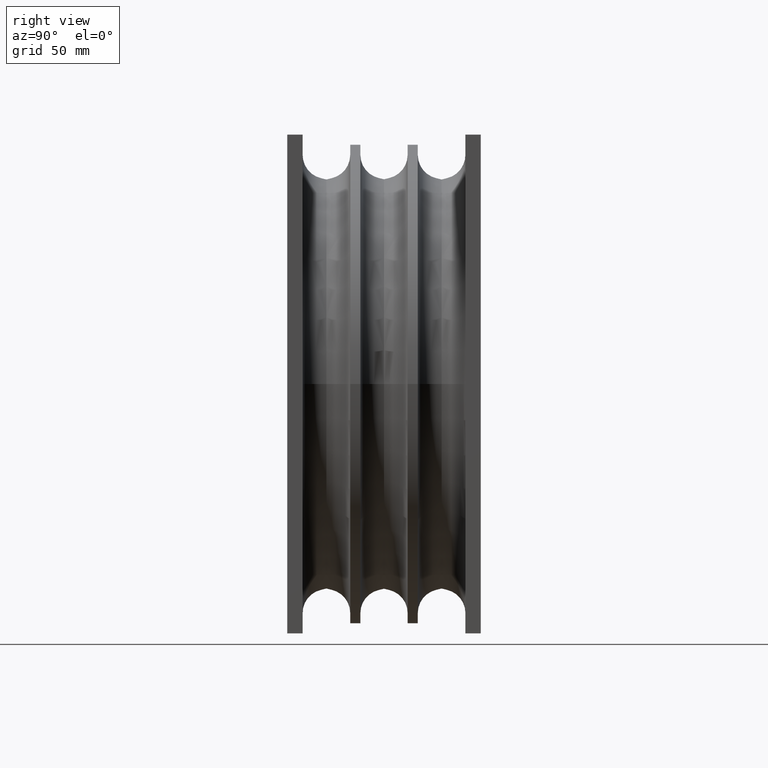
[diagram: clean part render]
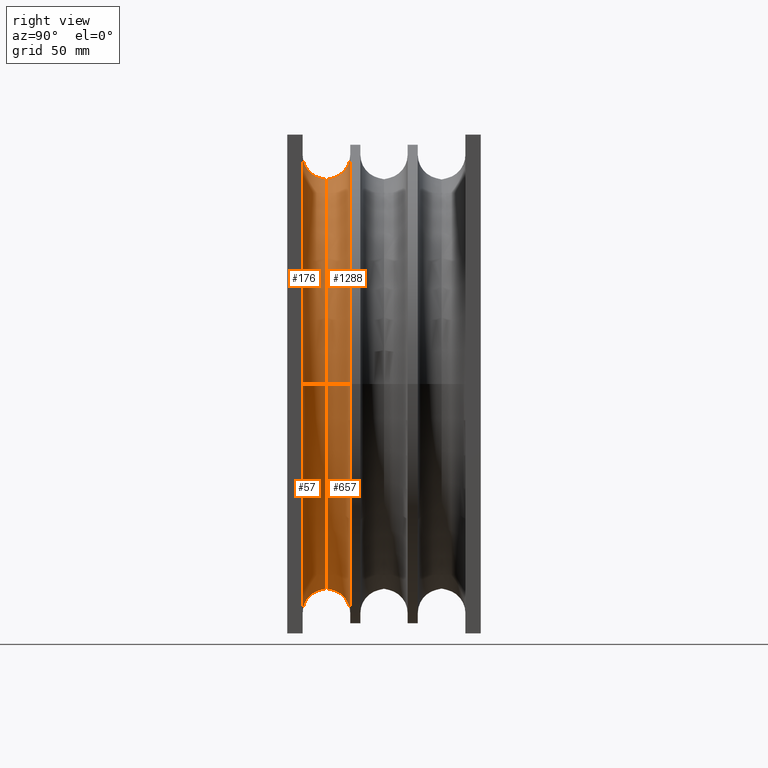
[diagram: same view with one multi-face feature highlighted, each face labeled with its STEP entity id]
A machine part, right view. The highlighted faces form ONE feature: a constant-radius fillet chain: 4 tangent blend faces with common blend radius 14.859 mm. The faces share edges in the B-rep.
Their STEP definitions:
[1] entity #176 (Torus):
#153 = DIRECTION ( 'NONE',  ( 1.000000000000000000, -2.306893861316488400E-016, 0.0000000000000000000 ) ) ;
#173 = VERTEX_POINT ( 'NONE', #452 ) ;
#176 = ADVANCED_FACE ( 'NONE', ( #908 ), #1188, .F. ) ;
#267 = CIRCLE ( 'NONE', #580, 5.625000000000000900 ) ;
#278 = EDGE_CURVE ( 'NONE', #490, #397, #854, .T. ) ;
#329 = DIRECTION ( 'NONE',  ( 1.000000000000000000, -2.258269631761038600E-016, 0.0000000000000000000 ) ) ;
#387 = CARTESIAN_POINT ( 'NONE',  ( -7.058335563419042900E-016, 0.3750000000000018900, 0.0000000000000000000 ) ) ;
#397 = VERTEX_POINT ( 'NONE', #1283 ) ;
#398 = ORIENTED_EDGE ( 'NONE', *, *, #964, .T. ) ;
#431 = AXIS2_PLACEMENT_3D ( 'NONE', #577, #934, #329 ) ;
#452 = CARTESIAN_POINT ( 'NONE',  ( -5.625000000000000900, 0.3750000000000031100, 6.888638245203862900E-016 ) ) ;
#464 = AXIS2_PLACEMENT_3D ( 'NONE', #1467, #1574, #488 ) ;
#474 = EDGE_CURVE ( 'NONE', #490, #173, #267, .T. ) ;
#488 = DIRECTION ( 'NONE',  ( 1.000000000000000000, 0.0000000000000000000, -1.224646799147354200E-016 ) ) ;
#490 = VERTEX_POINT ( 'NONE', #997 ) ;
#577 = CARTESIAN_POINT ( 'NONE',  ( 0.0000000000000000000, 0.9600000000000026300, 0.0000000000000000000 ) ) ;
#580 = AXIS2_PLACEMENT_3D ( 'NONE', #387, #1236, #153 ) ;
#654 = DIRECTION ( 'NONE',  ( 1.000000000000000000, -2.168133328304970800E-016, 0.0000000000000000000 ) ) ;
#656 = CARTESIAN_POINT ( 'NONE',  ( -5.040000000000000000, 0.9600000000000027400, 6.172219867702660300E-016 ) ) ;
#727 = CIRCLE ( 'NONE', #1476, 5.040000000000000000 ) ;
#806 = ORIENTED_EDGE ( 'NONE', *, *, #474, .F. ) ;
#854 = CIRCLE ( 'NONE', #927, 0.5850000000000004100 ) ;
#908 = FACE_OUTER_BOUND ( 'NONE', #1038, .T. ) ;
#927 = AXIS2_PLACEMENT_3D ( 'NONE', #1199, #1083, #1078 ) ;
#934 = DIRECTION ( 'NONE',  ( -2.258269631761038600E-016, -1.000000000000000000, -0.0000000000000000000 ) ) ;
#964 = EDGE_CURVE ( 'NONE', #397, #1011, #727, .T. ) ;
#997 = CARTESIAN_POINT ( 'NONE',  ( 5.625000000000000000, 0.3750000000000006700, 0.0000000000000000000 ) ) ;
#1011 = VERTEX_POINT ( 'NONE', #656 ) ;
#1038 = EDGE_LOOP ( 'NONE', ( #1303, #398, #1471, #806 ) ) ;
#1074 = EDGE_CURVE ( 'NONE', #173, #1011, #1285, .T. ) ;
#1078 = DIRECTION ( 'NONE',  ( -1.000000000000000000, 0.0000000000000000000, 0.0000000000000000000 ) ) ;
#1083 = DIRECTION ( 'NONE',  ( 0.0000000000000000000, 0.0000000000000000000, -1.000000000000000000 ) ) ;
#1188 = TOROIDAL_SURFACE ( 'NONE', #431, 5.625000000000000000, 0.5850000000000007400 ) ;
#1199 = CARTESIAN_POINT ( 'NONE',  ( 5.625000000000000000, 0.9600000000000014100, 0.0000000000000000000 ) ) ;
#1236 = DIRECTION ( 'NONE',  ( -2.258269631761038600E-016, -1.000000000000000000, -0.0000000000000000000 ) ) ;
#1246 = CARTESIAN_POINT ( 'NONE',  ( 1.617865865546481300E-032, 0.9600000000000027400, 0.0000000000000000000 ) ) ;
#1283 = CARTESIAN_POINT ( 'NONE',  ( 5.040000000000000000, 0.9600000000000027400, 0.0000000000000000000 ) ) ;
#1285 = CIRCLE ( 'NONE', #464, 0.5850000000000004100 ) ;
#1303 = ORIENTED_EDGE ( 'NONE', *, *, #278, .T. ) ;
#1376 = DIRECTION ( 'NONE',  ( -2.258269631761038600E-016, -1.000000000000000000, -0.0000000000000000000 ) ) ;
#1467 = CARTESIAN_POINT ( 'NONE',  ( -5.625000000000000000, 0.9600000000000038500, 6.888638245203861900E-016 ) ) ;
#1471 = ORIENTED_EDGE ( 'NONE', *, *, #1074, .F. ) ;
#1476 = AXIS2_PLACEMENT_3D ( 'NONE', #1246, #1376, #654 ) ;
#1574 = DIRECTION ( 'NONE',  ( 1.224646799147353200E-016, -2.765582676147827700E-032, 1.000000000000000000 ) ) ;
[2] entity #1288 (Torus):
#78 = AXIS2_PLACEMENT_3D ( 'NONE', #699, #213, #1052 ) ;
#84 = CARTESIAN_POINT ( 'NONE',  ( 5.625000000000000000, 0.9600000000000014100, 0.0000000000000000000 ) ) ;
#128 = DIRECTION ( 'NONE',  ( -2.258269631761038600E-016, -1.000000000000000000, -0.0000000000000000000 ) ) ;
#149 = VERTEX_POINT ( 'NONE', #1551 ) ;
#185 = EDGE_CURVE ( 'NONE', #397, #1553, #475, .T. ) ;
#213 = DIRECTION ( 'NONE',  ( 1.224646799147353200E-016, -2.765582676147827700E-032, 1.000000000000000000 ) ) ;
#229 = EDGE_CURVE ( 'NONE', #1553, #149, #418, .T. ) ;
#257 = TOROIDAL_SURFACE ( 'NONE', #272, 5.625000000000000000, 0.5850000000000007400 ) ;
#272 = AXIS2_PLACEMENT_3D ( 'NONE', #465, #128, #980 ) ;
#274 = FACE_OUTER_BOUND ( 'NONE', #1575, .T. ) ;
#310 = ORIENTED_EDGE ( 'NONE', *, *, #185, .T. ) ;
#397 = VERTEX_POINT ( 'NONE', #1283 ) ;
#418 = CIRCLE ( 'NONE', #1332, 5.625000000000000000 ) ;
#462 = DIRECTION ( 'NONE',  ( 1.000000000000000000, -2.428309327701567300E-016, 0.0000000000000000000 ) ) ;
#465 = CARTESIAN_POINT ( 'NONE',  ( 0.0000000000000000000, 0.9600000000000026300, 0.0000000000000000000 ) ) ;
#475 = CIRCLE ( 'NONE', #948, 0.5850000000000004100 ) ;
#581 = DIRECTION ( 'NONE',  ( 0.0000000000000000000, 0.0000000000000000000, -1.000000000000000000 ) ) ;
#608 = ORIENTED_EDGE ( 'NONE', *, *, #964, .F. ) ;
#654 = DIRECTION ( 'NONE',  ( 1.000000000000000000, -2.168133328304970800E-016, 0.0000000000000000000 ) ) ;
#656 = CARTESIAN_POINT ( 'NONE',  ( -5.040000000000000000, 0.9600000000000027400, 6.172219867702660300E-016 ) ) ;
#699 = CARTESIAN_POINT ( 'NONE',  ( -5.625000000000000000, 0.9600000000000038500, 6.888638245203861900E-016 ) ) ;
#727 = CIRCLE ( 'NONE', #1476, 5.040000000000000000 ) ;
#842 = CARTESIAN_POINT ( 'NONE',  ( 5.625000000000000000, 1.545000000000002100, 0.0000000000000000000 ) ) ;
#861 = CARTESIAN_POINT ( 'NONE',  ( -4.416160094258623900E-016, 1.545000000000003700, 0.0000000000000000000 ) ) ;
#916 = ORIENTED_EDGE ( 'NONE', *, *, #229, .T. ) ;
#948 = AXIS2_PLACEMENT_3D ( 'NONE', #84, #581, #1435 ) ;
#964 = EDGE_CURVE ( 'NONE', #397, #1011, #727, .T. ) ;
#980 = DIRECTION ( 'NONE',  ( 1.000000000000000000, -2.258269631761038600E-016, 0.0000000000000000000 ) ) ;
#991 = CIRCLE ( 'NONE', #78, 0.5850000000000004100 ) ;
#1011 = VERTEX_POINT ( 'NONE', #656 ) ;
#1052 = DIRECTION ( 'NONE',  ( 1.000000000000000000, 0.0000000000000000000, -1.224646799147354200E-016 ) ) ;
#1094 = DIRECTION ( 'NONE',  ( -2.258269631761038600E-016, -1.000000000000000000, -0.0000000000000000000 ) ) ;
#1246 = CARTESIAN_POINT ( 'NONE',  ( 1.617865865546481300E-032, 0.9600000000000027400, 0.0000000000000000000 ) ) ;
#1283 = CARTESIAN_POINT ( 'NONE',  ( 5.040000000000000000, 0.9600000000000027400, 0.0000000000000000000 ) ) ;
#1288 = ADVANCED_FACE ( 'NONE', ( #274 ), #257, .F. ) ;
#1296 = ORIENTED_EDGE ( 'NONE', *, *, #1444, .F. ) ;
#1332 = AXIS2_PLACEMENT_3D ( 'NONE', #861, #1094, #462 ) ;
#1376 = DIRECTION ( 'NONE',  ( -2.258269631761038600E-016, -1.000000000000000000, -0.0000000000000000000 ) ) ;
#1435 = DIRECTION ( 'NONE',  ( -1.000000000000000000, 0.0000000000000000000, 0.0000000000000000000 ) ) ;
#1444 = EDGE_CURVE ( 'NONE', #1011, #149, #991, .T. ) ;
#1476 = AXIS2_PLACEMENT_3D ( 'NONE', #1246, #1376, #654 ) ;
#1551 = CARTESIAN_POINT ( 'NONE',  ( -5.625000000000000000, 1.545000000000004600, 6.888638245203862900E-016 ) ) ;
#1553 = VERTEX_POINT ( 'NONE', #842 ) ;
#1575 = EDGE_LOOP ( 'NONE', ( #608, #310, #916, #1296 ) ) ;
[3] entity #657 (Torus):
#23 = EDGE_CURVE ( 'NONE', #149, #1553, #504, .T. ) ;
#40 = FACE_OUTER_BOUND ( 'NONE', #1422, .T. ) ;
#48 = CARTESIAN_POINT ( 'NONE',  ( 0.0000000000000000000, 0.9600000000000026300, 0.0000000000000000000 ) ) ;
#78 = AXIS2_PLACEMENT_3D ( 'NONE', #699, #213, #1052 ) ;
#84 = CARTESIAN_POINT ( 'NONE',  ( 5.625000000000000000, 0.9600000000000014100, 0.0000000000000000000 ) ) ;
#137 = AXIS2_PLACEMENT_3D ( 'NONE', #48, #1518, #1170 ) ;
#149 = VERTEX_POINT ( 'NONE', #1551 ) ;
#185 = EDGE_CURVE ( 'NONE', #397, #1553, #475, .T. ) ;
#213 = DIRECTION ( 'NONE',  ( 1.224646799147353200E-016, -2.765582676147827700E-032, 1.000000000000000000 ) ) ;
#237 = DIRECTION ( 'NONE',  ( 1.000000000000000000, -2.168133328304970800E-016, 0.0000000000000000000 ) ) ;
#397 = VERTEX_POINT ( 'NONE', #1283 ) ;
#475 = CIRCLE ( 'NONE', #948, 0.5850000000000004100 ) ;
#485 = AXIS2_PLACEMENT_3D ( 'NONE', #728, #866, #237 ) ;
#504 = CIRCLE ( 'NONE', #909, 5.625000000000000000 ) ;
#581 = DIRECTION ( 'NONE',  ( 0.0000000000000000000, 0.0000000000000000000, -1.000000000000000000 ) ) ;
#641 = ORIENTED_EDGE ( 'NONE', *, *, #1012, .F. ) ;
#656 = CARTESIAN_POINT ( 'NONE',  ( -5.040000000000000000, 0.9600000000000027400, 6.172219867702660300E-016 ) ) ;
#657 = ADVANCED_FACE ( 'NONE', ( #40 ), #1504, .F. ) ;
#686 = CIRCLE ( 'NONE', #485, 5.040000000000000000 ) ;
#699 = CARTESIAN_POINT ( 'NONE',  ( -5.625000000000000000, 0.9600000000000038500, 6.888638245203861900E-016 ) ) ;
#728 = CARTESIAN_POINT ( 'NONE',  ( 1.617865865546481300E-032, 0.9600000000000027400, 0.0000000000000000000 ) ) ;
#823 = DIRECTION ( 'NONE',  ( 1.000000000000000000, -2.428309327701567300E-016, 0.0000000000000000000 ) ) ;
#842 = CARTESIAN_POINT ( 'NONE',  ( 5.625000000000000000, 1.545000000000002100, 0.0000000000000000000 ) ) ;
#866 = DIRECTION ( 'NONE',  ( -2.258269631761038600E-016, -1.000000000000000000, -0.0000000000000000000 ) ) ;
#909 = AXIS2_PLACEMENT_3D ( 'NONE', #1537, #1021, #823 ) ;
#948 = AXIS2_PLACEMENT_3D ( 'NONE', #84, #581, #1435 ) ;
#991 = CIRCLE ( 'NONE', #78, 0.5850000000000004100 ) ;
#1011 = VERTEX_POINT ( 'NONE', #656 ) ;
#1012 = EDGE_CURVE ( 'NONE', #1011, #397, #686, .T. ) ;
#1021 = DIRECTION ( 'NONE',  ( -2.258269631761038600E-016, -1.000000000000000000, -0.0000000000000000000 ) ) ;
#1052 = DIRECTION ( 'NONE',  ( 1.000000000000000000, 0.0000000000000000000, -1.224646799147354200E-016 ) ) ;
#1170 = DIRECTION ( 'NONE',  ( 1.000000000000000000, -2.258269631761038600E-016, 0.0000000000000000000 ) ) ;
#1206 = ORIENTED_EDGE ( 'NONE', *, *, #23, .T. ) ;
#1283 = CARTESIAN_POINT ( 'NONE',  ( 5.040000000000000000, 0.9600000000000027400, 0.0000000000000000000 ) ) ;
#1422 = EDGE_LOOP ( 'NONE', ( #641, #1440, #1206, #1429 ) ) ;
#1429 = ORIENTED_EDGE ( 'NONE', *, *, #185, .F. ) ;
#1435 = DIRECTION ( 'NONE',  ( -1.000000000000000000, 0.0000000000000000000, 0.0000000000000000000 ) ) ;
#1440 = ORIENTED_EDGE ( 'NONE', *, *, #1444, .T. ) ;
#1444 = EDGE_CURVE ( 'NONE', #1011, #149, #991, .T. ) ;
#1504 = TOROIDAL_SURFACE ( 'NONE', #137, 5.625000000000000000, 0.5850000000000007400 ) ;
#1518 = DIRECTION ( 'NONE',  ( -2.258269631761038600E-016, -1.000000000000000000, -0.0000000000000000000 ) ) ;
#1537 = CARTESIAN_POINT ( 'NONE',  ( -4.416160094258623900E-016, 1.545000000000003700, 0.0000000000000000000 ) ) ;
#1551 = CARTESIAN_POINT ( 'NONE',  ( -5.625000000000000000, 1.545000000000004600, 6.888638245203862900E-016 ) ) ;
#1553 = VERTEX_POINT ( 'NONE', #842 ) ;
[4] entity #57 (Torus):
#57 = ADVANCED_FACE ( 'NONE', ( #1437 ), #138, .F. ) ;
#138 = TOROIDAL_SURFACE ( 'NONE', #1173, 5.625000000000000000, 0.5850000000000007400 ) ;
#173 = VERTEX_POINT ( 'NONE', #452 ) ;
#178 = CARTESIAN_POINT ( 'NONE',  ( 0.0000000000000000000, 0.9600000000000026300, 0.0000000000000000000 ) ) ;
#201 = DIRECTION ( 'NONE',  ( -2.258269631761038600E-016, -1.000000000000000000, -0.0000000000000000000 ) ) ;
#237 = DIRECTION ( 'NONE',  ( 1.000000000000000000, -2.168133328304970800E-016, 0.0000000000000000000 ) ) ;
#278 = EDGE_CURVE ( 'NONE', #490, #397, #854, .T. ) ;
#365 = ORIENTED_EDGE ( 'NONE', *, *, #851, .F. ) ;
#397 = VERTEX_POINT ( 'NONE', #1283 ) ;
#452 = CARTESIAN_POINT ( 'NONE',  ( -5.625000000000000900, 0.3750000000000031100, 6.888638245203862900E-016 ) ) ;
#464 = AXIS2_PLACEMENT_3D ( 'NONE', #1467, #1574, #488 ) ;
#485 = AXIS2_PLACEMENT_3D ( 'NONE', #728, #866, #237 ) ;
#488 = DIRECTION ( 'NONE',  ( 1.000000000000000000, 0.0000000000000000000, -1.224646799147354200E-016 ) ) ;
#490 = VERTEX_POINT ( 'NONE', #997 ) ;
#510 = CIRCLE ( 'NONE', #970, 5.625000000000000900 ) ;
#601 = DIRECTION ( 'NONE',  ( -2.258269631761038600E-016, -1.000000000000000000, -0.0000000000000000000 ) ) ;
#644 = ORIENTED_EDGE ( 'NONE', *, *, #278, .F. ) ;
#656 = CARTESIAN_POINT ( 'NONE',  ( -5.040000000000000000, 0.9600000000000027400, 6.172219867702660300E-016 ) ) ;
#686 = CIRCLE ( 'NONE', #485, 5.040000000000000000 ) ;
#728 = CARTESIAN_POINT ( 'NONE',  ( 1.617865865546481300E-032, 0.9600000000000027400, 0.0000000000000000000 ) ) ;
#795 = EDGE_LOOP ( 'NONE', ( #1174, #1342, #644, #365 ) ) ;
#851 = EDGE_CURVE ( 'NONE', #173, #490, #510, .T. ) ;
#854 = CIRCLE ( 'NONE', #927, 0.5850000000000004100 ) ;
#866 = DIRECTION ( 'NONE',  ( -2.258269631761038600E-016, -1.000000000000000000, -0.0000000000000000000 ) ) ;
#921 = DIRECTION ( 'NONE',  ( 1.000000000000000000, -2.258269631761038600E-016, 0.0000000000000000000 ) ) ;
#927 = AXIS2_PLACEMENT_3D ( 'NONE', #1199, #1083, #1078 ) ;
#970 = AXIS2_PLACEMENT_3D ( 'NONE', #1075, #601, #1571 ) ;
#997 = CARTESIAN_POINT ( 'NONE',  ( 5.625000000000000000, 0.3750000000000006700, 0.0000000000000000000 ) ) ;
#1011 = VERTEX_POINT ( 'NONE', #656 ) ;
#1012 = EDGE_CURVE ( 'NONE', #1011, #397, #686, .T. ) ;
#1074 = EDGE_CURVE ( 'NONE', #173, #1011, #1285, .T. ) ;
#1075 = CARTESIAN_POINT ( 'NONE',  ( -7.058335563419042900E-016, 0.3750000000000018900, 0.0000000000000000000 ) ) ;
#1078 = DIRECTION ( 'NONE',  ( -1.000000000000000000, 0.0000000000000000000, 0.0000000000000000000 ) ) ;
#1083 = DIRECTION ( 'NONE',  ( 0.0000000000000000000, 0.0000000000000000000, -1.000000000000000000 ) ) ;
#1173 = AXIS2_PLACEMENT_3D ( 'NONE', #178, #201, #921 ) ;
#1174 = ORIENTED_EDGE ( 'NONE', *, *, #1074, .T. ) ;
#1199 = CARTESIAN_POINT ( 'NONE',  ( 5.625000000000000000, 0.9600000000000014100, 0.0000000000000000000 ) ) ;
#1283 = CARTESIAN_POINT ( 'NONE',  ( 5.040000000000000000, 0.9600000000000027400, 0.0000000000000000000 ) ) ;
#1285 = CIRCLE ( 'NONE', #464, 0.5850000000000004100 ) ;
#1342 = ORIENTED_EDGE ( 'NONE', *, *, #1012, .T. ) ;
#1437 = FACE_OUTER_BOUND ( 'NONE', #795, .T. ) ;
#1467 = CARTESIAN_POINT ( 'NONE',  ( -5.625000000000000000, 0.9600000000000038500, 6.888638245203861900E-016 ) ) ;
#1571 = DIRECTION ( 'NONE',  ( 1.000000000000000000, -2.306893861316488400E-016, 0.0000000000000000000 ) ) ;
#1574 = DIRECTION ( 'NONE',  ( 1.224646799147353200E-016, -2.765582676147827700E-032, 1.000000000000000000 ) ) ;